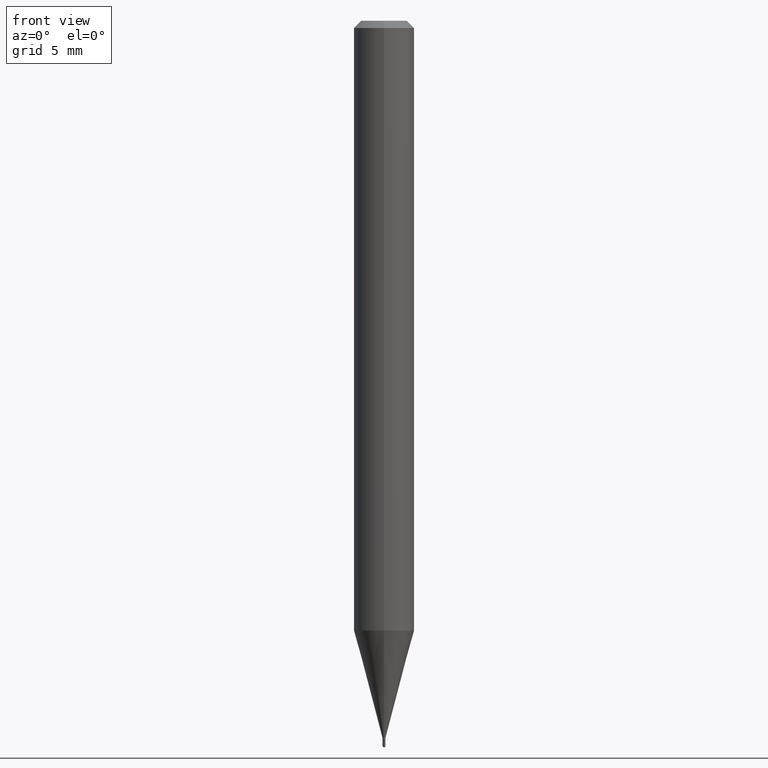
[diagram: clean part render]
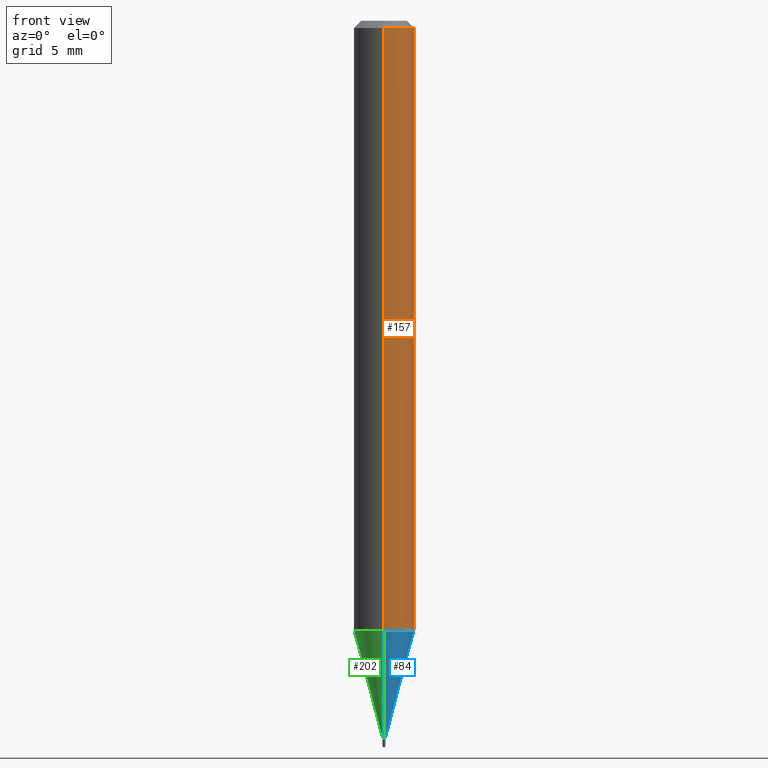
[diagram: same view with three faces highlighted in distinct colors, each labeled with its STEP entity id]
A machine part, front view with three faces highlighted in distinct colors.
Their STEP definitions:

[orange] entity #157 — the highlighted cylindrical surface (edge-blend (fillet) strip) has radius 1.5875 mm, axis along (-0, 0, 1).
#5 = DIRECTION ( 'NONE',  ( -2.445474316170176047E-29, 3.491473448230960175E-15, 1.000000000000000000 ) ) ;
#9 = DIRECTION ( 'NONE',  ( -2.445474316170176047E-29, 3.491473448230960175E-15, 1.000000000000000000 ) ) ;
#34 = CYLINDRICAL_SURFACE ( 'NONE', #450, 0.06250000000000000000 ) ;
#59 = DIRECTION ( 'NONE',  ( -6.982962677686265922E-15, -1.000000000000000000, 4.370956789862821150E-15 ) ) ;
#66 = VERTEX_POINT ( 'NONE', #478 ) ;
#73 = DIRECTION ( 'NONE',  ( -6.982962677686265922E-15, -1.000000000000000000, 3.483106191921935554E-15 ) ) ;
#74 = LINE ( 'NONE', #218, #149 ) ;
#75 = VERTEX_POINT ( 'NONE', #372 ) ;
#77 = CIRCLE ( 'NONE', #104, 0.06250000000000000000 ) ;
#80 = FACE_OUTER_BOUND ( 'NONE', #134, .T. ) ;
#85 = CIRCLE ( 'NONE', #242, 0.06250000000000000000 ) ;
#89 = EDGE_CURVE ( 'NONE', #75, #382, #421, .T. ) ;
#104 = AXIS2_PLACEMENT_3D ( 'NONE', #214, #249, #59 ) ;
#134 = EDGE_LOOP ( 'NONE', ( #232, #491, #490, #257 ) ) ;
#149 = VECTOR ( 'NONE', #303, 39.37007874015748143 ) ;
#157 = ADVANCED_FACE ( 'NONE', ( #80 ), #34, .T. ) ;
#192 = CARTESIAN_POINT ( 'NONE',  ( 0.000000000000000000, 0.000000000000000000, 0.000000000000000000 ) ) ;
#214 = CARTESIAN_POINT ( 'NONE',  ( 3.078712715653197173E-29, -4.395565976856553855E-15, -1.258942976949652515 ) ) ;
#218 = CARTESIAN_POINT ( 'NONE',  ( 4.440892098500625669E-16, 0.06250000000000000000, -2.182170905144350109E-16 ) ) ;
#232 = ORIENTED_EDGE ( 'NONE', *, *, #433, .T. ) ;
#235 = CARTESIAN_POINT ( 'NONE',  ( -4.364351673553916201E-16, -0.06250000000000000000, 2.182170905144350109E-16 ) ) ;
#242 = AXIS2_PLACEMENT_3D ( 'NONE', #402, #9, #73 ) ;
#249 = DIRECTION ( 'NONE',  ( -2.445474316170176047E-29, 3.491473448230960175E-15, 1.000000000000000000 ) ) ;
#256 = CARTESIAN_POINT ( 'NONE',  ( 4.440892098500935790E-16, 0.06249999999999995143, -0.01500000000000022669 ) ) ;
#257 = ORIENTED_EDGE ( 'NONE', *, *, #89, .F. ) ;
#258 = EDGE_CURVE ( 'NONE', #382, #350, #85, .T. ) ;
#272 = EDGE_CURVE ( 'NONE', #66, #350, #74, .T. ) ;
#303 = DIRECTION ( 'NONE',  ( -2.445474316170176327E-29, 3.491473448230960570E-15, 1.000000000000000000 ) ) ;
#316 = DIRECTION ( 'NONE',  ( -6.982962677686265922E-15, -1.000000000000000000, 3.491473448230960175E-15 ) ) ;
#325 = VECTOR ( 'NONE', #383, 39.37007874015748143 ) ;
#329 = CARTESIAN_POINT ( 'NONE',  ( -4.364351673553912750E-16, -0.06250000000000005551, -0.01499999999999979128 ) ) ;
#350 = VERTEX_POINT ( 'NONE', #256 ) ;
#372 = CARTESIAN_POINT ( 'NONE',  ( -4.364351673553607559E-16, -0.06250000000000438538, -1.258942976949652293 ) ) ;
#382 = VERTEX_POINT ( 'NONE', #329 ) ;
#383 = DIRECTION ( 'NONE',  ( -2.445474316170176327E-29, 3.491473448230960570E-15, 1.000000000000000000 ) ) ;
#402 = CARTESIAN_POINT ( 'NONE',  ( 3.668211474255266646E-31, -5.237210172346444084E-17, -0.01500000000000000812 ) ) ;
#421 = LINE ( 'NONE', #235, #325 ) ;
#433 = EDGE_CURVE ( 'NONE', #75, #66, #77, .T. ) ;
#450 = AXIS2_PLACEMENT_3D ( 'NONE', #192, #5, #316 ) ;
#478 = CARTESIAN_POINT ( 'NONE',  ( 4.440892098500932831E-16, 0.06249999999999560074, -1.258942976949652737 ) ) ;
#490 = ORIENTED_EDGE ( 'NONE', *, *, #258, .F. ) ;
#491 = ORIENTED_EDGE ( 'NONE', *, *, #272, .T. ) ;

[blue] entity #84 — the highlighted conical surface has half-angle 15 deg.
#4 = LINE ( 'NONE', #49, #209 ) ;
#11 = ORIENTED_EDGE ( 'NONE', *, *, #162, .F. ) ;
#49 = CARTESIAN_POINT ( 'NONE',  ( -2.094888803302204488E-17, -0.003000000000005094512, -1.481000000000000094 ) ) ;
#52 = DIRECTION ( 'NONE',  ( -1.807323732225330928E-15, -0.2588190451025182970, 0.9659258262890689783 ) ) ;
#59 = DIRECTION ( 'NONE',  ( -6.982962677686265922E-15, -1.000000000000000000, 4.370956789862821150E-15 ) ) ;
#66 = VERTEX_POINT ( 'NONE', #478 ) ;
#75 = VERTEX_POINT ( 'NONE', #372 ) ;
#77 = CIRCLE ( 'NONE', #104, 0.06250000000000000000 ) ;
#84 = ADVANCED_FACE ( 'NONE', ( #374 ), #472, .T. ) ;
#97 = DIRECTION ( 'NONE',  ( 1.839019923739601104E-15, 0.2588190451025250693, 0.9659258262890670910 ) ) ;
#99 = VERTEX_POINT ( 'NONE', #153 ) ;
#102 = VECTOR ( 'NONE', #97, 39.37007874015748143 ) ;
#104 = AXIS2_PLACEMENT_3D ( 'NONE', #214, #249, #59 ) ;
#129 = CARTESIAN_POINT ( 'NONE',  ( 2.131628207283867732E-17, 0.002999999999994752958, -1.481000000000000094 ) ) ;
#153 = CARTESIAN_POINT ( 'NONE',  ( -2.094888803302204488E-17, -0.003000000000005094512, -1.481000000000000094 ) ) ;
#154 = DIRECTION ( 'NONE',  ( -6.982962677686264344E-15, -1.000000000000000000, 0.000000000000000000 ) ) ;
#162 = EDGE_CURVE ( 'NONE', #99, #75, #4, .T. ) ;
#166 = AXIS2_PLACEMENT_3D ( 'NONE', #290, #420, #349 ) ;
#179 = ORIENTED_EDGE ( 'NONE', *, *, #211, .T. ) ;
#184 = AXIS2_PLACEMENT_3D ( 'NONE', #354, #321, #154 ) ;
#209 = VECTOR ( 'NONE', #52, 39.37007874015748143 ) ;
#211 = EDGE_CURVE ( 'NONE', #381, #66, #217, .T. ) ;
#214 = CARTESIAN_POINT ( 'NONE',  ( 3.078712715653197173E-29, -4.395565976856553855E-15, -1.258942976949652515 ) ) ;
#217 = LINE ( 'NONE', #129, #102 ) ;
#249 = DIRECTION ( 'NONE',  ( -2.445474316170176047E-29, 3.491473448230960175E-15, 1.000000000000000000 ) ) ;
#281 = CIRCLE ( 'NONE', #184, 0.002999999999999923735 ) ;
#290 = CARTESIAN_POINT ( 'NONE',  ( 3.621747462248030591E-29, -5.170872176830052333E-15, -1.481000000000000094 ) ) ;
#297 = ORIENTED_EDGE ( 'NONE', *, *, #433, .F. ) ;
#321 = DIRECTION ( 'NONE',  ( -2.445474316170176047E-29, 3.491473448230960175E-15, 1.000000000000000000 ) ) ;
#349 = DIRECTION ( 'NONE',  ( -6.982962677686264344E-15, -1.000000000000000000, 0.000000000000000000 ) ) ;
#354 = CARTESIAN_POINT ( 'NONE',  ( 3.621747462248030591E-29, -5.170872176830052333E-15, -1.481000000000000094 ) ) ;
#366 = EDGE_LOOP ( 'NONE', ( #428, #179, #297, #11 ) ) ;
#372 = CARTESIAN_POINT ( 'NONE',  ( -4.364351673553607559E-16, -0.06250000000000438538, -1.258942976949652293 ) ) ;
#374 = FACE_OUTER_BOUND ( 'NONE', #366, .T. ) ;
#381 = VERTEX_POINT ( 'NONE', #446 ) ;
#420 = DIRECTION ( 'NONE',  ( -2.445474316170176047E-29, 3.491473448230960175E-15, 1.000000000000000000 ) ) ;
#428 = ORIENTED_EDGE ( 'NONE', *, *, #445, .T. ) ;
#433 = EDGE_CURVE ( 'NONE', #75, #66, #77, .T. ) ;
#445 = EDGE_CURVE ( 'NONE', #99, #381, #281, .T. ) ;
#446 = CARTESIAN_POINT ( 'NONE',  ( 2.327027459614661497E-16, 0.002999999999994752090, -1.481000000000000094 ) ) ;
#472 = CONICAL_SURFACE ( 'NONE', #166, 0.002999999999999923735, 0.2617993877991502960 ) ;
#478 = CARTESIAN_POINT ( 'NONE',  ( 4.440892098500932831E-16, 0.06249999999999560074, -1.258942976949652737 ) ) ;

[green] entity #202 — the highlighted conical surface has half-angle 15 deg.
#4 = LINE ( 'NONE', #49, #209 ) ;
#24 = DIRECTION ( 'NONE',  ( -6.982962677686264344E-15, -1.000000000000000000, 0.000000000000000000 ) ) ;
#44 = DIRECTION ( 'NONE',  ( -6.982962677686264344E-15, -1.000000000000000000, 0.000000000000000000 ) ) ;
#48 = CARTESIAN_POINT ( 'NONE',  ( 3.621747462248030591E-29, -5.170872176830052333E-15, -1.481000000000000094 ) ) ;
#49 = CARTESIAN_POINT ( 'NONE',  ( -2.094888803302204488E-17, -0.003000000000005094512, -1.481000000000000094 ) ) ;
#52 = DIRECTION ( 'NONE',  ( -1.807323732225330928E-15, -0.2588190451025182970, 0.9659258262890689783 ) ) ;
#62 = CIRCLE ( 'NONE', #319, 0.06250000000000000000 ) ;
#66 = VERTEX_POINT ( 'NONE', #478 ) ;
#75 = VERTEX_POINT ( 'NONE', #372 ) ;
#78 = DIRECTION ( 'NONE',  ( -6.982962677686265922E-15, -1.000000000000000000, 4.370956789862821150E-15 ) ) ;
#97 = DIRECTION ( 'NONE',  ( 1.839019923739601104E-15, 0.2588190451025250693, 0.9659258262890670910 ) ) ;
#99 = VERTEX_POINT ( 'NONE', #153 ) ;
#102 = VECTOR ( 'NONE', #97, 39.37007874015748143 ) ;
#112 = EDGE_LOOP ( 'NONE', ( #503, #213, #318, #460 ) ) ;
#116 = DIRECTION ( 'NONE',  ( -2.445474316170176047E-29, 3.491473448230960175E-15, 1.000000000000000000 ) ) ;
#129 = CARTESIAN_POINT ( 'NONE',  ( 2.131628207283867732E-17, 0.002999999999994752958, -1.481000000000000094 ) ) ;
#140 = EDGE_CURVE ( 'NONE', #66, #75, #62, .T. ) ;
#153 = CARTESIAN_POINT ( 'NONE',  ( -2.094888803302204488E-17, -0.003000000000005094512, -1.481000000000000094 ) ) ;
#161 = EDGE_CURVE ( 'NONE', #381, #99, #346, .T. ) ;
#162 = EDGE_CURVE ( 'NONE', #99, #75, #4, .T. ) ;
#202 = ADVANCED_FACE ( 'NONE', ( #392 ), #226, .T. ) ;
#209 = VECTOR ( 'NONE', #52, 39.37007874015748143 ) ;
#211 = EDGE_CURVE ( 'NONE', #381, #66, #217, .T. ) ;
#213 = ORIENTED_EDGE ( 'NONE', *, *, #161, .T. ) ;
#217 = LINE ( 'NONE', #129, #102 ) ;
#226 = CONICAL_SURFACE ( 'NONE', #273, 0.002999999999999923735, 0.2617993877991502960 ) ;
#273 = AXIS2_PLACEMENT_3D ( 'NONE', #48, #356, #24 ) ;
#280 = DIRECTION ( 'NONE',  ( -2.445474316170176047E-29, 3.491473448230960175E-15, 1.000000000000000000 ) ) ;
#318 = ORIENTED_EDGE ( 'NONE', *, *, #162, .T. ) ;
#319 = AXIS2_PLACEMENT_3D ( 'NONE', #416, #116, #78 ) ;
#346 = CIRCLE ( 'NONE', #442, 0.002999999999999923735 ) ;
#356 = DIRECTION ( 'NONE',  ( -2.445474316170176047E-29, 3.491473448230960175E-15, 1.000000000000000000 ) ) ;
#372 = CARTESIAN_POINT ( 'NONE',  ( -4.364351673553607559E-16, -0.06250000000000438538, -1.258942976949652293 ) ) ;
#381 = VERTEX_POINT ( 'NONE', #446 ) ;
#392 = FACE_OUTER_BOUND ( 'NONE', #112, .T. ) ;
#393 = CARTESIAN_POINT ( 'NONE',  ( 3.621747462248030591E-29, -5.170872176830052333E-15, -1.481000000000000094 ) ) ;
#416 = CARTESIAN_POINT ( 'NONE',  ( 3.078712715653197173E-29, -4.395565976856553855E-15, -1.258942976949652515 ) ) ;
#442 = AXIS2_PLACEMENT_3D ( 'NONE', #393, #280, #44 ) ;
#446 = CARTESIAN_POINT ( 'NONE',  ( 2.327027459614661497E-16, 0.002999999999994752090, -1.481000000000000094 ) ) ;
#460 = ORIENTED_EDGE ( 'NONE', *, *, #140, .F. ) ;
#478 = CARTESIAN_POINT ( 'NONE',  ( 4.440892098500932831E-16, 0.06249999999999560074, -1.258942976949652737 ) ) ;
#503 = ORIENTED_EDGE ( 'NONE', *, *, #211, .F. ) ;